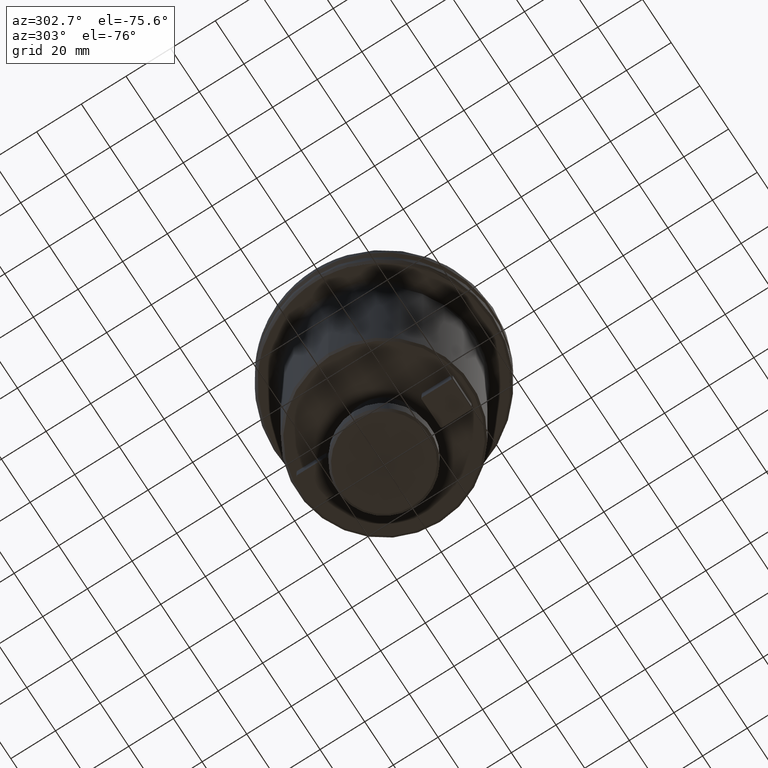
[diagram: clean part render]
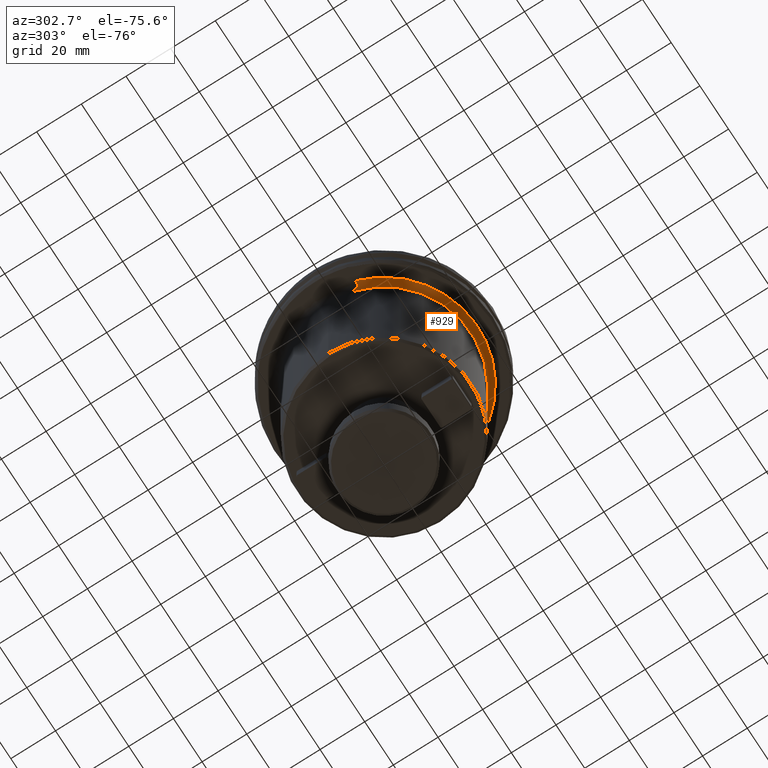
[diagram: same view with one face highlighted and labeled with its STEP entity id]
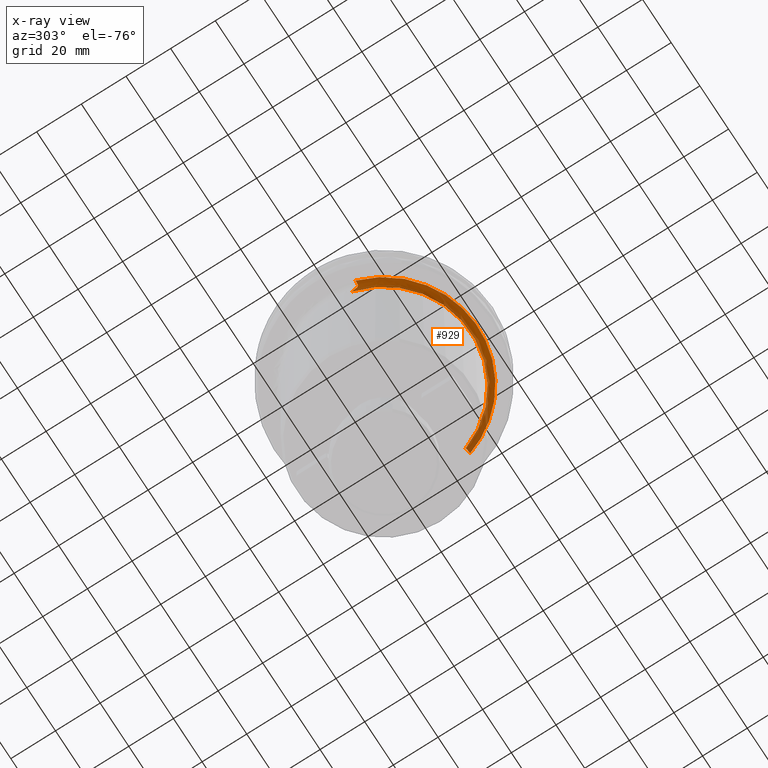
[diagram: x-ray of the same camera — body ghosted, the highlighted face saturated]
A machine part, auxiliary view. The second image highlights one B-rep face of the part: STEP entity #929.
The next image is the same camera in x-ray: the body ghosted, the highlighted face saturated — about 14% of this face is hidden behind the body in this view.
In plain terms, the highlighted face is a freeform B-spline surface patch.
Its self-contained STEP definition (entity closure, byte-faithful):
#21 = EDGE_CURVE ( 'NONE', #4424, #1702, #3686, .T. ) ;
#52 = CARTESIAN_POINT ( 'NONE',  ( -37.86250446085625800, -12.54344017145118800, -19.96783722316052600 ) ) ;
#63 = CARTESIAN_POINT ( 'NONE',  ( 37.30951604569861500, -11.35781723905427400, -22.10000000000000500 ) ) ;
#99 = CARTESIAN_POINT ( 'NONE',  ( -38.97100032765173000, -12.85000000000000900, -19.24907760521533700 ) ) ;
#290 = FACE_OUTER_BOUND ( 'NONE', #1650, .T. ) ;
#417 = CARTESIAN_POINT ( 'NONE',  ( -38.08503616706723000, -12.74205164331876000, -19.72698696822909200 ) ) ;
#431 = CARTESIAN_POINT ( 'NONE',  ( -26.02157524358589300, -57.01553513733772100, -22.10000000000000500 ) ) ;
#456 = CARTESIAN_POINT ( 'NONE',  ( -39.72720374607425200, -12.85000000000003200, -19.10000000000000500 ) ) ;
#669 = B_SPLINE_CURVE_WITH_KNOTS ( 'NONE', 3,
 ( #1257, #1268, #1241, #1234, #1230, #1227, #1210, #1195, #1189, #1183, #1175, #1170 ),
 .UNSPECIFIED., .F., .F.,
 ( 4, 2, 2, 2, 2, 4 ),
 ( 0.0000000000000000000, 0.0003551618365669099300, 0.0007103236731338198500, 0.001420647346267631900, 0.002130971019401443700, 0.002841294692535255600 ),
 .UNSPECIFIED. ) ;
#750 = CARTESIAN_POINT ( 'NONE',  ( -40.76109249801378100, -10.12587469645783300, -19.10000000000000500 ) ) ;
#751 = CARTESIAN_POINT ( 'NONE',  ( -38.38435266942466500, -12.85000000000003200, -19.51168076380792700 ) ) ;
#781 = VERTEX_POINT ( 'NONE', #3676 ) ;
#850 = CARTESIAN_POINT ( 'NONE',  ( -37.69999999999999600, -9.985489472229200900, -22.10000000000000500 ) ) ;
#892 = VERTEX_POINT ( 'NONE', #2815 ) ;
#929 = ADVANCED_FACE ( 'NONE', ( #290 ), #1720, .F. ) ;
#1084 = CARTESIAN_POINT ( 'NONE',  ( -37.69999999999997400, -12.17012348884752100, -20.27844739977506100 ) ) ;
#1094 = CARTESIAN_POINT ( 'NONE',  ( 23.75547293025076800, -60.14868649094294300, -19.10000000000000500 ) ) ;
#1103 = DIRECTION ( 'NONE',  ( 1.000000000000000000, 0.0000000000000000000, 0.0000000000000000000 ) ) ;
#1116 = VERTEX_POINT ( 'NONE', #850 ) ;
#1117 = DIRECTION ( 'NONE',  ( -0.0000000000000000000, -0.0000000000000000000, -1.000000000000000000 ) ) ;
#1119 = CARTESIAN_POINT ( 'NONE',  ( 0.0000000000000000000, 0.0000000000000000000, -22.10000000000000500 ) ) ;
#1159 = CARTESIAN_POINT ( 'NONE',  ( 37.49923457600277000, -12.85000000000001000, -20.23763340846445800 ) ) ;
#1165 = ORIENTED_EDGE ( 'NONE', *, *, #1998, .F. ) ;
#1170 = CARTESIAN_POINT ( 'NONE',  ( -37.69999999999999600, -12.05000000000000800, -20.32842753608415600 ) ) ;
#1175 = CARTESIAN_POINT ( 'NONE',  ( -37.70000000000000300, -11.83059041507077300, -20.41971793288746900 ) ) ;
#1183 = CARTESIAN_POINT ( 'NONE',  ( -37.69999999999998200, -11.61471915277720500, -20.51787348697079600 ) ) ;
#1189 = CARTESIAN_POINT ( 'NONE',  ( -37.69999999999998200, -11.19328333980483200, -20.73418197908491200 ) ) ;
#1195 = CARTESIAN_POINT ( 'NONE',  ( -37.70000000000002400, -10.98683813725769200, -20.85238341824029400 ) ) ;
#1210 = CARTESIAN_POINT ( 'NONE',  ( -37.70000000000001000, -10.59515877100056300, -21.12226144921862300 ) ) ;
#1221 = ORIENTED_EDGE ( 'NONE', *, *, #2004, .F. ) ;
#1227 = CARTESIAN_POINT ( 'NONE',  ( -37.70000000000000300, -10.41041281911511400, -21.27110581722506700 ) ) ;
#1230 = CARTESIAN_POINT ( 'NONE',  ( -37.70000000000001700, -10.17948579985300000, -21.54627006527704600 ) ) ;
#1234 = CARTESIAN_POINT ( 'NONE',  ( -37.69999999999998900, -10.11275865134622300, -21.64445365838441800 ) ) ;
#1241 = CARTESIAN_POINT ( 'NONE',  ( -37.69999999999998200, -10.01432196998996500, -21.86290109935874100 ) ) ;
#1257 = CARTESIAN_POINT ( 'NONE',  ( -37.69999999999999600, -9.985489472229200900, -22.10000000000000500 ) ) ;
#1268 = CARTESIAN_POINT ( 'NONE',  ( -37.70000000000001000, -9.985489472229199100, -21.97916494371544300 ) ) ;
#1307 = CARTESIAN_POINT ( 'NONE',  ( 38.61388692437604000, -12.85000000000001900, -19.39137900925653600 ) ) ;
#1391 = CARTESIAN_POINT ( 'NONE',  ( 38.99194199356219300, -12.85000000000001400, -19.24624408929630400 ) ) ;
#1439 = CARTESIAN_POINT ( 'NONE',  ( -39.05557141457148200, -9.702188977436799500, -19.10000000000000500 ) ) ;
#1465 = CARTESIAN_POINT ( 'NONE',  ( -38.73093280059603000, -12.85000000000002600, -19.33628276229440600 ) ) ;
#1541 = ORIENTED_EDGE ( 'NONE', *, *, #1846, .F. ) ;
#1555 = AXIS2_PLACEMENT_3D ( 'NONE', #1119, #1117, #1103 ) ;
#1593 = CARTESIAN_POINT ( 'NONE',  ( 36.99397641029659000, -12.85000000000000000, -21.10681829291509700 ) ) ;
#1650 = EDGE_LOOP ( 'NONE', ( #1221, #3977, #1541, #3630, #3729, #1165 ) ) ;
#1702 = VERTEX_POINT ( 'NONE', #4246 ) ;
#1720 =( BOUNDED_SURFACE ( )  B_SPLINE_SURFACE ( 3, 3, ( 
 ( #2138, #2846, #2860, #750 ),
 ( #3208, #1094, #3544, #1439 ),
 ( #3872, #1782, #4182, #2154 ),
 ( #63, #2507, #431, #2876 ) ),
 .UNSPECIFIED., .F., .F., .T. ) 
 B_SPLINE_SURFACE_WITH_KNOTS ( ( 4, 4 ),
 ( 4, 4 ),
 ( 0.0000000000000000000, 1.000000000000000000 ),
 ( 0.0000000000000000000, 1.000000000000000000 ),
 .UNSPECIFIED. ) 
 GEOMETRIC_REPRESENTATION_ITEM ( )  RATIONAL_B_SPLINE_SURFACE ( (
 ( 1.000000000000000000, 0.5108328100955453800, 0.5108328100955453800, 1.000000000000000000),
 ( 0.8047378541243649400, 0.4110864994126083900, 0.4110864994126083900, 0.8047378541243649400),
 ( 0.8047378541243649400, 0.4110864994126083900, 0.4110864994126083900, 0.8047378541243649400),
 ( 1.000000000000000000, 0.5108328100955453800, 0.5108328100955453800, 1.000000000000000000) ) ) 
 REPRESENTATION_ITEM ( '' )  SURFACE ( )  );
#1782 = CARTESIAN_POINT ( 'NONE',  ( 23.02193465590141800, -58.29137285957502000, -20.34264068711928500 ) ) ;
#1846 = EDGE_CURVE ( 'NONE', #1868, #4424, #4423, .T. ) ;
#1868 = VERTEX_POINT ( 'NONE', #2135 ) ;
#1942 = B_SPLINE_CURVE_WITH_KNOTS ( 'NONE', 3,
 ( #3193, #1084, #4166, #2140, #52, #2497, #417, #2862, #751, #3209 ),
 .UNSPECIFIED., .F., .F.,
 ( 4, 2, 2, 2, 4 ),
 ( 1.734723475976806900E-018, 0.0003825518415897103700, 0.0007651036831794190100, 0.001147655524769127700, 0.001530207366358836300 ),
 .UNSPECIFIED. ) ;
#1970 = CARTESIAN_POINT ( 'NONE',  ( 39.58223826333975400, -12.85000000000001200, -19.11857992134431700 ) ) ;
#1998 = EDGE_CURVE ( 'NONE', #1116, #892, #669, .T. ) ;
#2004 = EDGE_CURVE ( 'NONE', #1702, #1116, #3627, .T. ) ;
#2135 = CARTESIAN_POINT ( 'NONE',  ( -39.98596628818666000, -12.85000000000000500, -19.09999999999999800 ) ) ;
#2138 = CARTESIAN_POINT ( 'NONE',  ( 40.17947881844465700, -12.23149548821229600, -19.10000000000000500 ) ) ;
#2140 = CARTESIAN_POINT ( 'NONE',  ( -37.80647748199992000, -12.46160439945507300, -20.05003987803830900 ) ) ;
#2154 = CARTESIAN_POINT ( 'NONE',  ( -37.84958589101279400, -9.402597932425129200, -20.34264068711928900 ) ) ;
#2185 = CARTESIAN_POINT ( 'NONE',  ( 39.98596628818666000, -12.85000000000000000, -19.09999999999999800 ) ) ;
#2202 = CARTESIAN_POINT ( 'NONE',  ( 39.33959402213734100, -14.86134783189627000, -19.10000000000000500 ) ) ;
#2208 = CARTESIAN_POINT ( 'NONE',  ( 38.54605468183992700, -16.81266482017946700, -19.10000000000000900 ) ) ;
#2213 = CARTESIAN_POINT ( 'NONE',  ( 37.59064972956722500, -18.73350231085989700, -19.10000000000000100 ) ) ;
#2217 = CARTESIAN_POINT ( 'NONE',  ( 37.57478275261382800, -18.76530919720509900, -19.10000000000000100 ) ) ;
#2221 = CARTESIAN_POINT ( 'NONE',  ( 37.54410974358242500, -18.82660274158061900, -19.10000000000000100 ) ) ;
#2224 = CARTESIAN_POINT ( 'NONE',  ( 37.49799273568452700, -18.91847837016374000, -19.10000000000000500 ) ) ;
#2232 = CARTESIAN_POINT ( 'NONE',  ( 37.38963392346742200, -19.13240202099648700, -19.10000000000000500 ) ) ;
#2236 = CARTESIAN_POINT ( 'NONE',  ( 37.16990645721166000, -19.55843805921733700, -19.10000000000000500 ) ) ;
#2249 = CARTESIAN_POINT ( 'NONE',  ( 36.71841215741395800, -20.40326508188036300, -19.10000000000000500 ) ) ;
#2272 = CARTESIAN_POINT ( 'NONE',  ( 35.76726608867397800, -22.06393891209173200, -19.10000000000000500 ) ) ;
#2280 = CARTESIAN_POINT ( 'NONE',  ( 34.86944236836328100, -23.43769325493345000, -19.10000000000000100 ) ) ;
#2285 = CARTESIAN_POINT ( 'NONE',  ( 34.19449928193090900, -24.38730907363920900, -19.10000000000000500 ) ) ;
#2292 = CARTESIAN_POINT ( 'NONE',  ( 34.15255691185148400, -24.44601719081128300, -19.10000000000000100 ) ) ;
#2301 = CARTESIAN_POINT ( 'NONE',  ( 34.07050790624332800, -24.56024464789562600, -19.10000000000000500 ) ) ;
#2313 = CARTESIAN_POINT ( 'NONE',  ( 33.94703029679848100, -24.73124541939289500, -19.10000000000000500 ) ) ;
#2321 = CARTESIAN_POINT ( 'NONE',  ( 33.65608716753167300, -25.12786432064840600, -19.10000000000000900 ) ) ;
#2337 = CARTESIAN_POINT ( 'NONE',  ( 33.06288608008316000, -25.91157052754025600, -19.10000000000000500 ) ) ;
#2350 = CARTESIAN_POINT ( 'NONE',  ( 31.83122458952635700, -27.44085655884748600, -19.10000000000000500 ) ) ;
#2385 = CARTESIAN_POINT ( 'NONE',  ( 30.69792734220368800, -28.68631364429399600, -19.10000000000000100 ) ) ;
#2392 = CARTESIAN_POINT ( 'NONE',  ( 29.80916070757473700, -29.58772670197041400, -19.09999999999999800 ) ) ;
#2397 = CARTESIAN_POINT ( 'NONE',  ( 29.70725458203373000, -29.69005628931465800, -19.10000000000000500 ) ) ;
#2410 = CARTESIAN_POINT ( 'NONE',  ( 29.50518347948854400, -29.89089638214280200, -19.10000000000000500 ) ) ;
#2425 = CARTESIAN_POINT ( 'NONE',  ( 29.20066369695868100, -30.19051002046040100, -19.10000000000000100 ) ) ;
#2443 = CARTESIAN_POINT ( 'NONE',  ( 28.48022563673774600, -30.87808300339598200, -19.10000000000000900 ) ) ;
#2448 = CARTESIAN_POINT ( 'NONE',  ( 26.99978191235760900, -32.20712694337844800, -19.10000000000000900 ) ) ;
#2456 = CARTESIAN_POINT ( 'NONE',  ( 25.66299997042332100, -33.26727541898286200, -19.10000000000000900 ) ) ;
#2461 = B_SPLINE_CURVE_WITH_KNOTS ( 'NONE', 3,
 ( #3232, #1465, #99, #2543, #456, #2907 ),
 .UNSPECIFIED., .F., .F.,
 ( 4, 2, 4 ),
 ( 0.0000000000000000000, 0.0007652998939715565000, 0.001530599787943113000 ),
 .UNSPECIFIED. ) ;
#2463 = CARTESIAN_POINT ( 'NONE',  ( 22.89899584898152800, -35.28219631101757900, -19.10000000000000100 ) ) ;
#2468 = CARTESIAN_POINT ( 'NONE',  ( 20.95891477162992100, -36.46815260789841800, -19.10000000000000500 ) ) ;
#2486 = CARTESIAN_POINT ( 'NONE',  ( 18.79591448483104800, -37.55973587055878900, -19.10000000000000500 ) ) ;
#2497 = CARTESIAN_POINT ( 'NONE',  ( -38.00267100204771300, -12.68446641599514100, -19.80543024007526400 ) ) ;
#2498 = CARTESIAN_POINT ( 'NONE',  ( 18.67166831741822000, -37.62165168068779800, -19.10000000000000500 ) ) ;
#2504 = CARTESIAN_POINT ( 'NONE',  ( 18.41939268173023700, -37.74581965986413200, -19.10000000000000500 ) ) ;
#2507 = CARTESIAN_POINT ( 'NONE',  ( 23.02193465590141800, -58.29137285957502700, -22.10000000000000500 ) ) ;
#2513 = CARTESIAN_POINT ( 'NONE',  ( 18.04018507091129900, -37.93011301751946000, -19.10000000000000900 ) ) ;
#2524 = CARTESIAN_POINT ( 'NONE',  ( 17.14980821132497000, -38.34642057428425200, -19.10000000000000500 ) ) ;
#2530 = CARTESIAN_POINT ( 'NONE',  ( 15.34681808811698800, -39.12419457675675000, -19.10000000000000500 ) ) ;
#2540 = CARTESIAN_POINT ( 'NONE',  ( 13.76327843273536900, -39.69684467420675100, -19.10000000000000900 ) ) ;
#2543 = CARTESIAN_POINT ( 'NONE',  ( -39.46838754691719200, -12.85000000000000100, -19.13069516304290800 ) ) ;
#2547 = CARTESIAN_POINT ( 'NONE',  ( 12.62360361166863300, -40.05807664142569300, -19.10000000000000500 ) ) ;
#2549 = CARTESIAN_POINT ( 'NONE',  ( 12.55990744677489000, -40.07809089971517100, -19.10000000000000500 ) ) ;
#2554 = CARTESIAN_POINT ( 'NONE',  ( 12.42905875826634500, -40.11886511832808100, -19.10000000000000900 ) ) ;
#2558 = CARTESIAN_POINT ( 'NONE',  ( 12.23267289724558000, -40.17953746732268900, -19.10000000000000900 ) ) ;
#2562 = CARTESIAN_POINT ( 'NONE',  ( 11.77364942372487300, -40.31768342917037300, -19.10000000000001200 ) ) ;
#2567 = CARTESIAN_POINT ( 'NONE',  ( 10.85244328546109200, -40.58028394297319600, -19.10000000000000900 ) ) ;
#2573 = CARTESIAN_POINT ( 'NONE',  ( 8.997394244044064800, -41.05071933100885000, -19.10000000000000500 ) ) ;
#2578 = CARTESIAN_POINT ( 'NONE',  ( 7.385689183018980600, -41.36006571006227300, -19.10000000000000900 ) ) ;
#2586 = CARTESIAN_POINT ( 'NONE',  ( 6.267713066865373300, -41.52971120028507100, -19.10000000000000500 ) ) ;
#2594 = CARTESIAN_POINT ( 'NONE',  ( 6.236309617569373700, -41.53443733904516900, -19.10000000000001200 ) ) ;
#2608 = CARTESIAN_POINT ( 'NONE',  ( 6.171019598772881300, -41.54418815921701500, -19.10000000000000500 ) ) ;
#2614 = CARTESIAN_POINT ( 'NONE',  ( 6.073076065203508700, -41.55869829845555300, -19.10000000000000100 ) ) ;
#2623 = CARTESIAN_POINT ( 'NONE',  ( 5.844481615919242800, -41.59174265287743600, -19.10000000000000500 ) ) ;
#2627 = CARTESIAN_POINT ( 'NONE',  ( 5.387054566861094100, -41.65458081318244200, -19.10000000000000100 ) ) ;
#2642 = CARTESIAN_POINT ( 'NONE',  ( 4.471247866786360900, -41.76725493963736800, -19.10000000000000100 ) ) ;
#2654 = CARTESIAN_POINT ( 'NONE',  ( 2.635824058803101000, -41.94059441592683200, -19.10000000000000100 ) ) ;
#2661 = CARTESIAN_POINT ( 'NONE',  ( 1.056071524245255000, -42.00001320711148600, -19.10000000000000500 ) ) ;
#2670 = CARTESIAN_POINT ( 'NONE',  ( -2.112143048490505500, -41.99997358577706300, -19.10000000000001200 ) ) ;
#2684 = CARTESIAN_POINT ( 'NONE',  ( -4.213360910734362400, -41.84149705313081600, -19.10000000000001600 ) ) ;
#2689 = CARTESIAN_POINT ( 'NONE',  ( -6.334219728182718600, -41.51961844933411800, -19.10000000000000500 ) ) ;
#2705 = CARTESIAN_POINT ( 'NONE',  ( -6.369358632751842100, -41.51424332419238500, -19.10000000000000900 ) ) ;
#2719 = CARTESIAN_POINT ( 'NONE',  ( -6.437097436679559700, -41.50379408943471300, -19.10000000000000500 ) ) ;
#2721 = CARTESIAN_POINT ( 'NONE',  ( 39.78252951012503800, -12.85000000000000300, -19.10000000000000500 ) ) ;
#2727 = CARTESIAN_POINT ( 'NONE',  ( -6.538676944738213600, -41.48799810620214100, -19.10000000000000500 ) ) ;
#2736 = CARTESIAN_POINT ( 'NONE',  ( -6.775494912044642600, -41.45028589432092000, -19.09999999999999800 ) ) ;
#2742 = CARTESIAN_POINT ( 'NONE',  ( -7.248327307335730800, -41.37144179987033300, -19.10000000000000500 ) ) ;
#2748 = CARTESIAN_POINT ( 'NONE',  ( -8.190777940630866300, -41.20007492821685700, -19.10000000000000500 ) ) ;
#2753 = CARTESIAN_POINT ( 'NONE',  ( -10.06282257807297100, -40.80262645390069300, -19.10000000000001200 ) ) ;
#2763 = CARTESIAN_POINT ( 'NONE',  ( -11.64539233162648600, -40.36815965132815600, -19.10000000000000900 ) ) ;
#2774 = CARTESIAN_POINT ( 'NONE',  ( -12.75597149298790200, -40.01611945535560700, -19.10000000000000900 ) ) ;
#2785 = CARTESIAN_POINT ( 'NONE',  ( -12.82469673702766300, -39.99415024367976200, -19.10000000000000500 ) ) ;
#2790 = CARTESIAN_POINT ( 'NONE',  ( -12.95854971251467100, -39.95098391156705000, -19.10000000000000100 ) ) ;
#2797 = CARTESIAN_POINT ( 'NONE',  ( -13.15912872122999400, -39.88574553978300900, -19.10000000000000500 ) ) ;
#2801 = CARTESIAN_POINT ( 'NONE',  ( -13.62574322662607600, -39.73010055698218700, -19.10000000000000900 ) ) ;
#2806 = CARTESIAN_POINT ( 'NONE',  ( -14.55335951099291200, -39.40512213016150900, -19.10000000000000500 ) ) ;
#2815 = CARTESIAN_POINT ( 'NONE',  ( -37.69999999999999600, -12.05000000000000800, -20.32842753608415600 ) ) ;
#2833 = CARTESIAN_POINT ( 'NONE',  ( -16.38614117402527300, -38.70041143164432600, -19.10000000000000100 ) ) ;
#2843 = CARTESIAN_POINT ( 'NONE',  ( -17.91860961827935800, -38.00250995598524600, -19.10000000000000500 ) ) ;
#2846 = CARTESIAN_POINT ( 'NONE',  ( 24.79285270635537200, -62.77532461800387900, -19.10000000000000500 ) ) ;
#2853 = CARTESIAN_POINT ( 'NONE',  ( -19.04871731801164700, -37.43215198220443100, -19.10000000000000100 ) ) ;
#2860 = CARTESIAN_POINT ( 'NONE',  ( -28.02323487770787800, -61.40134553251753900, -19.10000000000000500 ) ) ;
#2862 = CARTESIAN_POINT ( 'NONE',  ( -38.27863315241373200, -12.82596854217949400, -19.57797750781160000 ) ) ;
#2863 = CARTESIAN_POINT ( 'NONE',  ( -19.17731829761870100, -37.36644056069540200, -19.10000000000000900 ) ) ;
#2874 = CARTESIAN_POINT ( 'NONE',  ( -19.43035160354835600, -37.23550691541952100, -19.10000000000000500 ) ) ;
#2876 = CARTESIAN_POINT ( 'NONE',  ( -37.84958589101279400, -9.402597932425129200, -22.10000000000000500 ) ) ;
#2880 = CARTESIAN_POINT ( 'NONE',  ( -19.80876636657293900, -37.03725733193670800, -19.10000000000000500 ) ) ;
#2885 = CARTESIAN_POINT ( 'NONE',  ( -20.68378777587442800, -36.56173116149390300, -19.10000000000000500 ) ) ;
#2896 = CARTESIAN_POINT ( 'NONE',  ( -22.40204511012058200, -35.55890358467660000, -19.10000000000000900 ) ) ;
#2899 = CARTESIAN_POINT ( 'NONE',  ( -23.82034770914839300, -34.61057954295034000, -19.10000000000000500 ) ) ;
#2900 = CARTESIAN_POINT ( 'NONE',  ( 39.98596628818666000, -12.85000000000000000, -19.09999999999999800 ) ) ;
#2903 = CARTESIAN_POINT ( 'NONE',  ( -26.58430037153126300, -32.59558806308261600, -19.10000000000000100 ) ) ;
#2907 = CARTESIAN_POINT ( 'NONE',  ( -39.98596628818666000, -12.85000000000000500, -19.09999999999999800 ) ) ;
#2909 = CARTESIAN_POINT ( 'NONE',  ( -28.30695871312687500, -31.11138620265378700, -19.10000000000000100 ) ) ;
#2914 = CARTESIAN_POINT ( 'NONE',  ( -30.00797217103808000, -29.38608116386870300, -19.10000000000000500 ) ) ;
#2921 = CARTESIAN_POINT ( 'NONE',  ( -30.10493233170079500, -29.28673628526226100, -19.10000000000000500 ) ) ;
#2927 = CARTESIAN_POINT ( 'NONE',  ( -30.30033039237566300, -29.08454755831430900, -19.10000000000000100 ) ) ;
#2936 = CARTESIAN_POINT ( 'NONE',  ( -30.59180576822888800, -28.77990915124411200, -19.10000000000000500 ) ) ;
#2943 = CARTESIAN_POINT ( 'NONE',  ( -31.26056297243942000, -28.05959898487574100, -19.10000000000000900 ) ) ;
#2948 = CARTESIAN_POINT ( 'NONE',  ( -32.55266935640584300, -26.58102978598727600, -19.10000000000000500 ) ) ;
#2966 = CARTESIAN_POINT ( 'NONE',  ( -33.58234678645488500, -25.24862955925145200, -19.10000000000000500 ) ) ;
#2982 = CARTESIAN_POINT ( 'NONE',  ( -34.27494275580017600, -24.27412555461934900, -19.10000000000000900 ) ) ;
#2990 = CARTESIAN_POINT ( 'NONE',  ( -34.31348525999299400, -24.21960723359280700, -19.10000000000000100 ) ) ;
#3008 = CARTESIAN_POINT ( 'NONE',  ( -34.39233769280478700, -24.10750812553779100, -19.10000000000000100 ) ) ;
#3016 = CARTESIAN_POINT ( 'NONE',  ( -34.51018533126821800, -23.93910244140515800, -19.10000000000000100 ) ) ;
#3021 = CARTESIAN_POINT ( 'NONE',  ( -34.78214607906968300, -23.54435669074489100, -19.10000000000000500 ) ) ;
#3029 = CARTESIAN_POINT ( 'NONE',  ( -35.31399927355303000, -22.74766857202122900, -19.10000000000000500 ) ) ;
#3033 = CARTESIAN_POINT ( 'NONE',  ( -36.32943245804152400, -21.12550586496134700, -19.10000000000000100 ) ) ;
#3046 = CARTESIAN_POINT ( 'NONE',  ( -37.11704969421190700, -19.68573245385993400, -19.09999999999999800 ) ) ;
#3048 = CARTESIAN_POINT ( 'NONE',  ( 37.63265695053173200, -12.85000000000000900, -20.08809361128934900 ) ) ;
#3054 = CARTESIAN_POINT ( 'NONE',  ( -37.62060759770331900, -18.67327029331785200, -19.10000000000000900 ) ) ;
#3067 = CARTESIAN_POINT ( 'NONE',  ( -37.63471263212218800, -18.64482360065743500, -19.10000000000000900 ) ) ;
#3074 = CARTESIAN_POINT ( 'NONE',  ( -37.66396913252995700, -18.58565250516561600, -19.10000000000000500 ) ) ;
#3078 = CARTESIAN_POINT ( 'NONE',  ( 38.43400888597765400, -12.85000000000000700, -19.48039939624327500 ) ) ;
#3082 = CARTESIAN_POINT ( 'NONE',  ( -37.70774601872171400, -18.49685213062807800, -19.10000000000000100 ) ) ;
#3085 = CARTESIAN_POINT ( 'NONE',  ( 37.92911635579399400, -12.85000000000001200, -19.81461014543362300 ) ) ;
#3087 = CARTESIAN_POINT ( 'NONE',  ( -37.80913703556299100, -18.28934513760853500, -19.10000000000000100 ) ) ;
#3104 = CARTESIAN_POINT ( 'NONE',  ( -38.00889886548769400, -17.87310667517483900, -19.10000000000000100 ) ) ;
#3110 = CARTESIAN_POINT ( 'NONE',  ( -38.39634171030575500, -17.03573184472903200, -19.10000000000000100 ) ) ;
#3124 = CARTESIAN_POINT ( 'NONE',  ( -39.12290413981632800, -15.34139056152373300, -19.10000000000000900 ) ) ;
#3165 = CARTESIAN_POINT ( 'NONE',  ( -39.98596628818666000, -12.85000000000000500, -19.09999999999999800 ) ) ;
#3188 = EDGE_CURVE ( 'NONE', #892, #781, #1942, .T. ) ;
#3193 = CARTESIAN_POINT ( 'NONE',  ( -37.69999999999999600, -12.05000000000000800, -20.32842753608415600 ) ) ;
#3201 = CARTESIAN_POINT ( 'NONE',  ( 36.82224191979624800, -12.85000000000000300, -22.10000000000000500 ) ) ;
#3208 = CARTESIAN_POINT ( 'NONE',  ( 38.49829354967591400, -11.71970661900590800, -19.10000000000000500 ) ) ;
#3209 = CARTESIAN_POINT ( 'NONE',  ( -38.49999999999999300, -12.85000000000001200, -19.45315371958664100 ) ) ;
#3232 = CARTESIAN_POINT ( 'NONE',  ( -38.49999999999999300, -12.85000000000001200, -19.45315371958664100 ) ) ;
#3279 = EDGE_CURVE ( 'NONE', #781, #1868, #2461, .T. ) ;
#3316 = CARTESIAN_POINT ( 'NONE',  ( -39.66283206203878100, -13.85551239481003400, -19.10000000000000500 ) ) ;
#3493 = CARTESIAN_POINT ( 'NONE',  ( 36.93064513086357400, -12.85000000000001000, -21.29718167949466300 ) ) ;
#3544 = CARTESIAN_POINT ( 'NONE',  ( -26.85068981129399300, -58.83219728501810400, -19.10000000000000500 ) ) ;
#3627 = CIRCLE ( 'NONE', #1555, 39.00000000000000000 ) ;
#3630 = ORIENTED_EDGE ( 'NONE', *, *, #3279, .F. ) ;
#3676 = CARTESIAN_POINT ( 'NONE',  ( -38.49999999999999300, -12.85000000000001200, -19.45315371958664100 ) ) ;
#3686 = B_SPLINE_CURVE_WITH_KNOTS ( 'NONE', 3,
 ( #2900, #2721, #1970, #3804, #1391, #1307, #3078, #4308, #3085, #3048, #1159, #4240, #4296, #1593, #3493, #3705, #3837, #3201 ),
 .UNSPECIFIED., .F., .F.,
 ( 4, 2, 2, 2, 2, 2, 2, 2, 4 ),
 ( 1.430489624538199200E-017, 0.0006017477319225722700, 0.001203495463845130200, 0.001805243195767688300, 0.002406990927690246100, 0.003008738659612804000, 0.003610486391535362300, 0.004212234123457919700, 0.004813981855380477500 ),
 .UNSPECIFIED. ) ;
#3705 = CARTESIAN_POINT ( 'NONE',  ( 36.84436781865931500, -12.85000000000000900, -21.69292766415735600 ) ) ;
#3729 = ORIENTED_EDGE ( 'NONE', *, *, #3188, .F. ) ;
#3804 = CARTESIAN_POINT ( 'NONE',  ( 39.18769340830626600, -12.85000000000000700, -19.19140269002767200 ) ) ;
#3837 = CARTESIAN_POINT ( 'NONE',  ( 36.82224191979624100, -12.85000000000000500, -21.89623777989576000 ) ) ;
#3872 = CARTESIAN_POINT ( 'NONE',  ( 37.30951604569860800, -11.35781723905427400, -20.34264068711928900 ) ) ;
#3977 = ORIENTED_EDGE ( 'NONE', *, *, #21, .F. ) ;
#4093 = CARTESIAN_POINT ( 'NONE',  ( 39.98596628818666000, -12.85000000000000000, -19.09999999999999800 ) ) ;
#4166 = CARTESIAN_POINT ( 'NONE',  ( -37.72541817528775700, -12.27453209447515500, -20.20504003082751900 ) ) ;
#4182 = CARTESIAN_POINT ( 'NONE',  ( -26.02157524358589000, -57.01553513733770700, -20.34264068711928500 ) ) ;
#4240 = CARTESIAN_POINT ( 'NONE',  ( 37.26272180151264000, -12.85000000000000900, -20.56292911395808100 ) ) ;
#4246 = CARTESIAN_POINT ( 'NONE',  ( 36.82224191979624800, -12.85000000000000300, -22.10000000000000500 ) ) ;
#4296 = CARTESIAN_POINT ( 'NONE',  ( 37.15925610130068400, -12.85000000000000300, -20.74045317217077100 ) ) ;
#4308 = CARTESIAN_POINT ( 'NONE',  ( 38.09245541266398000, -12.85000000000000500, -19.69117269450731600 ) ) ;
#4423 = B_SPLINE_CURVE_WITH_KNOTS ( 'NONE', 3,
 ( #3165, #3316, #3124, #3110, #3104, #3087, #3082, #3074, #3067, #3054, #3046, #3033, #3029, #3021, #3016, #3008, #2990, #2982, #2966, #2948, #2943, #2936, #2927, #2921, #2914, #2909, #2903, #2899, #2896, #2885, #2880, #2874, #2863, #2853, #2843, #2833, #2806, #2801, #2797, #2790, #2785, #2774, #2763, #2753, #2748, #2742, #2736, #2727, #2719, #2705, #2689, #2684, #2670, #2661, #2654, #2642, #2627, #2623, #2614, #2608, #2594, #2586, #2578, #2573, #2567, #2562, #2558, #2554, #2549, #2547, #2540, #2530, #2524, #2513, #2504, #2498, #2486, #2468, #2463, #2456, #2448, #2443, #2425, #2410, #2397, #2392, #2385, #2350, #2337, #2321, #2313, #2301, #2292, #2285, #2280, #2272, #2249, #2236, #2232, #2224, #2221, #2217, #2213, #2208, #2202, #2185 ),
 .UNSPECIFIED., .F., .F.,
 ( 4, 1, 1, 1, 1, 1, 2, 2, 1, 1, 1, 1, 2, 2, 1, 1, 1, 2, 2, 2, 1, 1, 1, 2, 2, 1, 1, 1, 1, 2, 2, 1, 1, 1, 1, 1, 2, 2, 2, 1, 1, 1, 1, 1, 2, 2, 1, 1, 1, 1, 2, 2, 1, 1, 1, 2, 2, 2, 1, 1, 1, 2, 2, 1, 1, 1, 1, 2, 2, 1, 1, 1, 1, 1, 2, 2, 4 ),
 ( 0.0000000000000000000, 0.03124999999999988200, 0.04687499999999979900, 0.05468749999999975000, 0.05859374999999977800, 0.06054687499999979200, 0.06152343749999979900, 0.06249999999999980600, 0.09375000000000030500, 0.1093750000000006700, 0.1171875000000008500, 0.1210937500000010300, 0.1230468750000011200, 0.1250000000000012200, 0.1562500000000028600, 0.1718750000000036400, 0.1796875000000040200, 0.1835937500000041600, 0.1875000000000043000, 0.2500000000000056100, 0.2812500000000063800, 0.2968750000000067200, 0.3046875000000068300, 0.3085937500000068800, 0.3125000000000069400, 0.3437500000000067200, 0.3593750000000066600, 0.3671875000000066100, 0.3710937500000065500, 0.3730468750000064900, 0.3750000000000063800, 0.4062500000000056100, 0.4218750000000052200, 0.4296875000000050500, 0.4335937500000050000, 0.4355468750000048800, 0.4365234375000048800, 0.4375000000000048800, 0.5000000000000046600, 0.5312500000000045500, 0.5468750000000044400, 0.5546875000000044400, 0.5585937500000044400, 0.5605468750000044400, 0.5615234375000044400, 0.5625000000000044400, 0.5937500000000037700, 0.6093750000000033300, 0.6171875000000032200, 0.6210937500000031100, 0.6230468750000031100, 0.6250000000000031100, 0.6562500000000027800, 0.6718750000000025500, 0.6796875000000025500, 0.6835937500000025500, 0.6875000000000025500, 0.7500000000000024400, 0.7812500000000023300, 0.7968750000000024400, 0.8046875000000024400, 0.8085937500000024400, 0.8125000000000023300, 0.8437500000000031100, 0.8593750000000035500, 0.8671875000000038900, 0.8710937500000038900, 0.8730468750000038900, 0.8750000000000038900, 0.9062500000000033300, 0.9218750000000031100, 0.9296875000000028900, 0.9335937500000027800, 0.9355468750000027800, 0.9365234375000026600, 0.9375000000000025500, 1.000000000000000000 ),
 .UNSPECIFIED. ) ;
#4424 = VERTEX_POINT ( 'NONE', #4093 ) ;